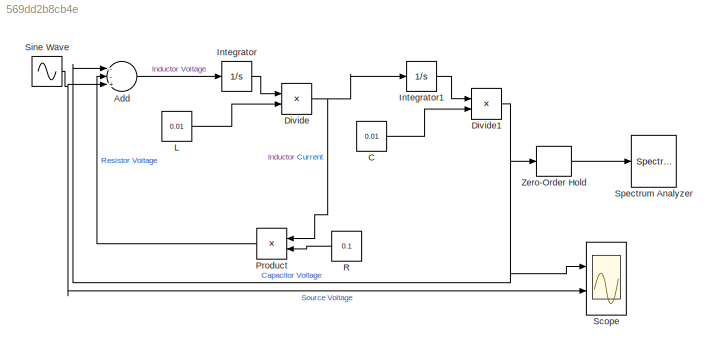
MODEL slx_569dd2b8cb4e
KIND model
BLOCK [Sum] Add
  InputSameDT = off
  Inputs = --+
  OutDataTypeStr = Inherit: Inherit via internal rule
  Ports = [3, 1]
  SaturateOnIntegerOverflow = off
BLOCK [Constant] C
  Value = 0.01
BLOCK [Product] Divide
  InputSameDT = off
  Inputs = */
  OutDataTypeStr = Inherit: Inherit via internal rule
  Ports = [2, 1]
  RndMeth = Floor
  SaturateOnIntegerOverflow = off
BLOCK [Product] Divide1
  InputSameDT = off
  Inputs = */
  OutDataTypeStr = Inherit: Inherit via internal rule
  Ports = [2, 1]
  RndMeth = Floor
  SaturateOnIntegerOverflow = off
BLOCK [Integrator] Integrator
  Ports = [1, 1]
BLOCK [Integrator] Integrator1
  Ports = [1, 1]
BLOCK [Constant] L
  Value = 0.01
BLOCK [Product] Product
  InputSameDT = off
  OutDataTypeStr = Inherit: Inherit via internal rule
  Ports = [2, 1]
  RndMeth = Floor
  SaturateOnIntegerOverflow = off
BLOCK [Constant] R
  Value = 0.1
BLOCK [Scope] Scope
  Floating = off
  NumInputPorts = 2
  Ports = [2]
  ShowLegends = off
  YMax = 2~1
  YMin = -2~-1
  ZoomMode = xonly
BLOCK [Sin] Sine Wave
  Frequency = 20
  Ports = [0, 1]
  SampleTime = 0
BLOCK [SpectrumAnalyzer] Spectrum Analyzer
  Ports = [1]
  ScopeSpecificationString = spbscopes.SpectrumAnalyzerBlockCfg('CurrentConfiguration', extmgr.ConfigurationSet(extmgr.Configuration('Core','General UI',true),extmgr.Configuration('Core','Source UI',true),extmgr.Configuration('Sources','WiredSimulink',true),extmgr.Configuration('Sources','Simulink',false),extmgr.Configuration('Sources','File',false),extmgr.Configuration('Sources','Workspace',false),extmgr.Configuration('Sourc...<+7132ch>
BLOCK [ZeroOrderHold] Zero-Order Hold
  SampleTime = 2e-5
LINE Add:1 -> Integrator:1
LINE C:1 -> Divide1:2
NET Divide1:1 -> Add:1, Scope:1, Zero-Order Hold:1
NET Divide:1 -> Integrator1:1, Product:1
LINE Integrator1:1 -> Divide1:1
LINE Integrator:1 -> Divide:1
LINE L:1 -> Divide:2
LINE Product:1 -> Add:2
LINE R:1 -> Product:2
NET Sine Wave:1 -> Add:3, Scope:2
LINE Zero-Order Hold:1 -> Spectrum Analyzer:1
note: NET lines group one-source signal fan-out (src -> all destinations, sorted); 1:1 wires keep LINE
